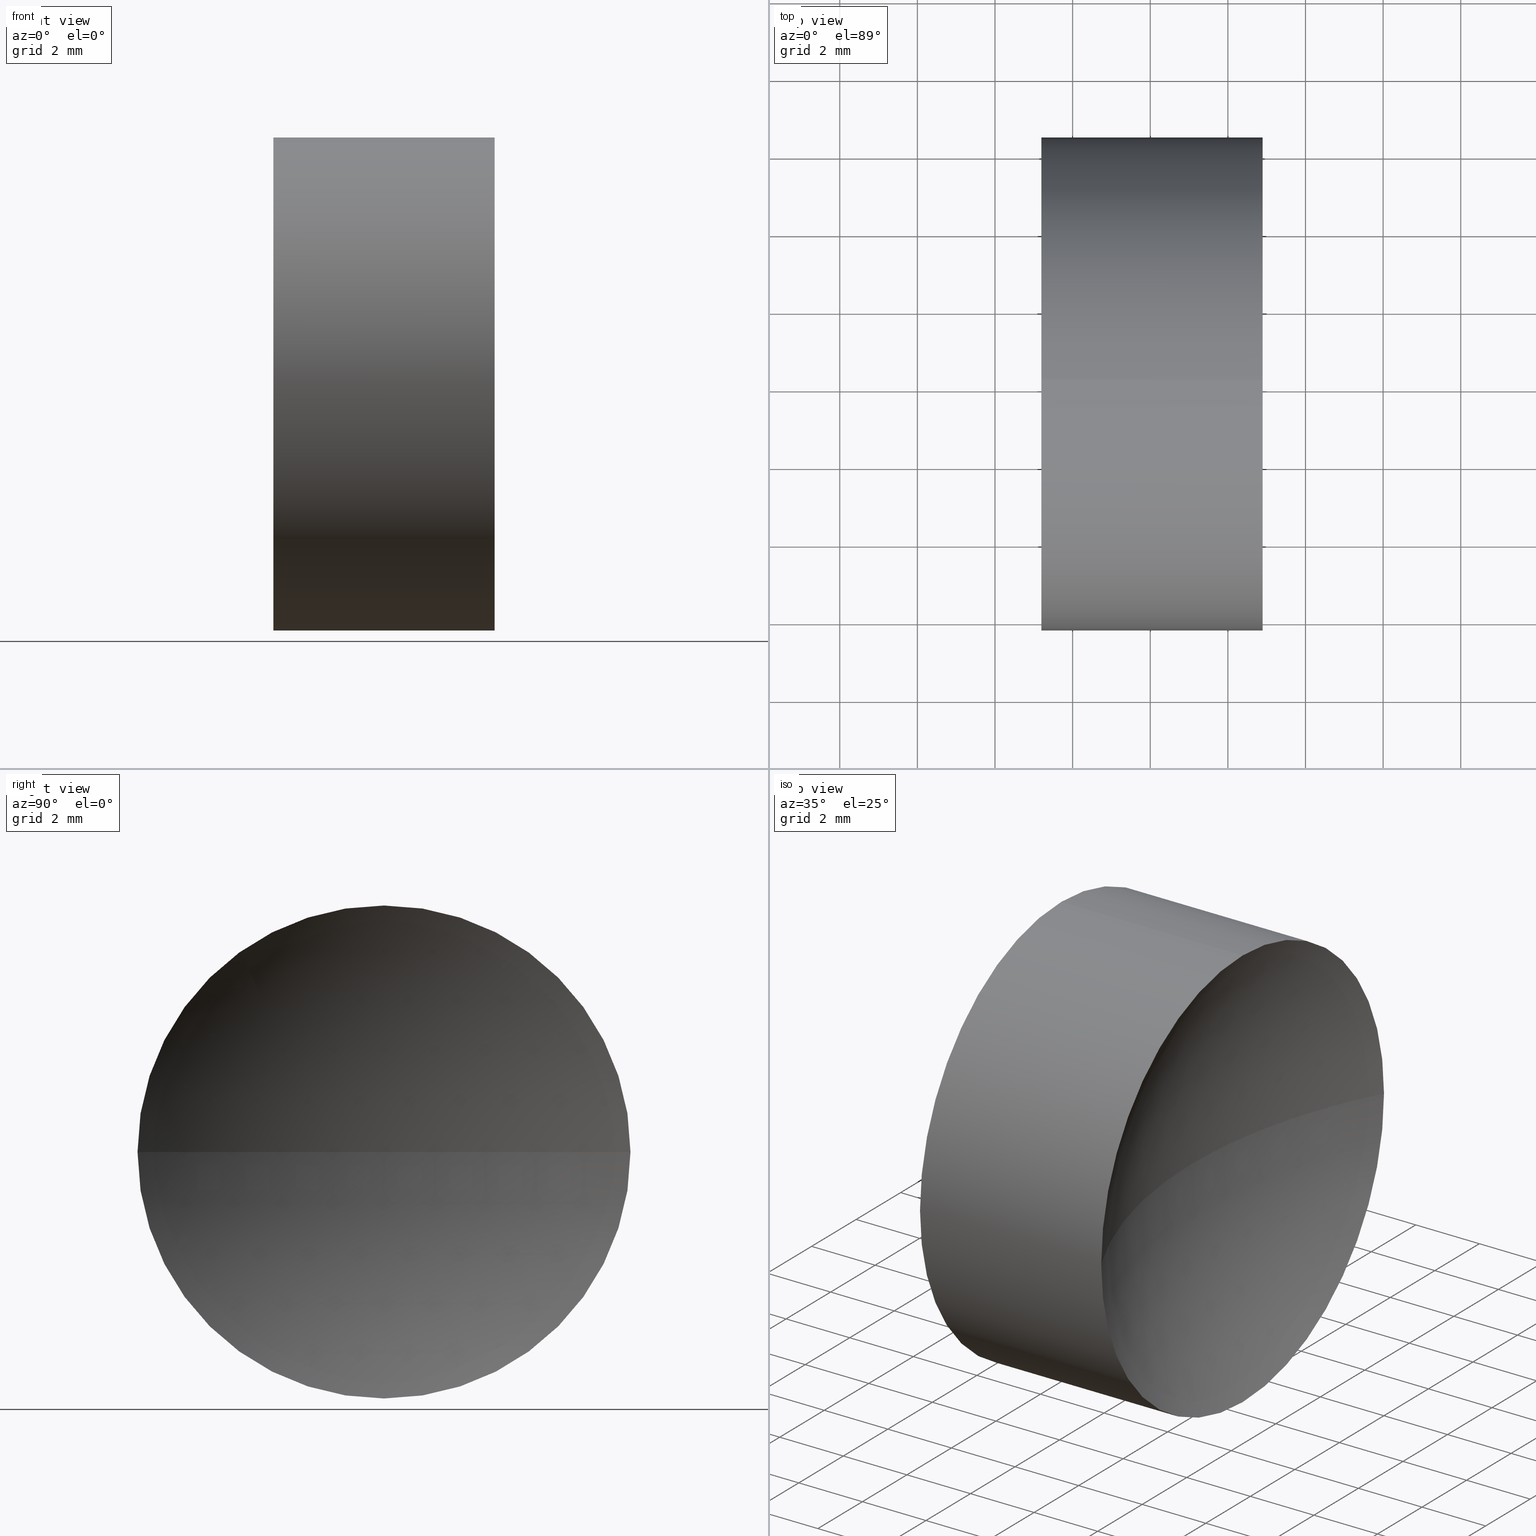
[diagram: canonical four-view strip — front | top / right | iso, engineering-drawing reading convention]
A machine part, canonical four-view strip (front | top / right | iso — engineering-drawing reading convention). The complete STEP part file that produces these views, byte-faithful:
ISO-10303-21;
HEADER;
FILE_DESCRIPTION (( 'STEP AP214' ),
    '1' );
FILE_NAME ('130070.STEP',
    '2019-07-02T09:12:59',
    ( '' ),
    ( '' ),
    'SwSTEP 2.0',
    'SolidWorks 2016',
    '' );
FILE_SCHEMA (( 'AUTOMOTIVE_DESIGN' ));
ENDSEC;

DATA;
#1 = EDGE_CURVE ( 'NONE', #21, #98, #13, .T. ) ;
#2 = ORIENTED_EDGE ( 'NONE', *, *, #128, .F. ) ;
#3 = CIRCLE ( 'NONE', #191, 6.349999999999997900 ) ;
#4 = AXIS2_PLACEMENT_3D ( 'NONE', #187, #85, #62 ) ;
#5 = ORIENTED_EDGE ( 'NONE', *, *, #14, .T. ) ;
#6 = SPHERICAL_SURFACE ( 'NONE', #164, 13.39999999999999500 ) ;
#7 =( GEOMETRIC_REPRESENTATION_CONTEXT ( 3 ) GLOBAL_UNCERTAINTY_ASSIGNED_CONTEXT ( ( #147 ) ) GLOBAL_UNIT_ASSIGNED_CONTEXT ( ( #227, #117, #132 ) ) REPRESENTATION_CONTEXT ( 'NONE', 'WORKASPACE' ) );
#8 = DIRECTION ( 'NONE',  ( -1.000000000000000000, -0.0000000000000000000, -0.0000000000000000000 ) ) ;
#9 = CARTESIAN_POINT ( 'NONE',  ( 46.79522198417998200, 26.08904114919496600, 0.0000000000000000000 ) ) ;
#10 = DIRECTION ( 'NONE',  ( 0.0000000000000000000, 1.000000000000000000, 0.0000000000000000000 ) ) ;
#11 = EDGE_CURVE ( 'NONE', #61, #86, #193, .T. ) ;
#12 = DIRECTION ( 'NONE',  ( -1.000000000000000000, -0.0000000000000000000, -0.0000000000000000000 ) ) ;
#13 = CIRCLE ( 'NONE', #140, 6.350000000000012100 ) ;
#14 = EDGE_CURVE ( 'NONE', #43, #156, #141, .T. ) ;
#15 =( NAMED_UNIT ( * ) PLANE_ANGLE_UNIT ( ) SI_UNIT ( $, .RADIAN. ) );
#16 = DIRECTION ( 'NONE',  ( 1.000000000000000000, 0.0000000000000000000, 0.0000000000000000000 ) ) ;
#17 = ORIENTED_EDGE ( 'NONE', *, *, #145, .T. ) ;
#18 = CIRCLE ( 'NONE', #52, 6.350000000000012100 ) ;
#19 = ADVANCED_FACE ( 'NONE', ( #93 ), #99, .F. ) ;
#20 = ORIENTED_EDGE ( 'NONE', *, *, #53, .T. ) ;
#21 = VERTEX_POINT ( 'NONE', #57 ) ;
#22 = COLOUR_RGB ( '',1.000000000000000000, 1.000000000000000000, 1.000000000000000000 ) ;
#23 = PRODUCT_DEFINITION_CONTEXT ( 'detailed design', #194, 'design' ) ;
#24 = DIRECTION ( 'NONE',  ( 0.0000000000000000000, 0.0000000000000000000, 1.000000000000000000 ) ) ;
#25 = VECTOR ( 'NONE', #151, 1000.000000000000000 ) ;
#26 = DIRECTION ( 'NONE',  ( 0.0000000000000000000, 0.0000000000000000000, 1.000000000000000000 ) ) ;
#27 = CARTESIAN_POINT ( 'NONE',  ( 45.19511605150109500, 32.43904114919495600, 0.0000000000000000000 ) ) ;
#28 = CARTESIAN_POINT ( 'NONE',  ( 45.19511605150109500, 26.08904114919495900, 0.0000000000000000000 ) ) ;
#29 = EDGE_LOOP ( 'NONE', ( #186, #188, #224, #17 ) ) ;
#30 = UNCERTAINTY_MEASURE_WITH_UNIT (LENGTH_MEASURE( 1.000000000000000100E-005 ), #82, 'distance_accuracy_value', 'NONE');
#31 = CARTESIAN_POINT ( 'NONE',  ( 45.19511605150109500, 26.08904114919495900, 0.0000000000000000000 ) ) ;
#32 = CARTESIAN_POINT ( 'NONE',  ( 62.69522198417998000, 26.08904114919495900, 0.0000000000000000000 ) ) ;
#33 = DIRECTION ( 'NONE',  ( -1.000000000000000000, 0.0000000000000000000, 0.0000000000000000000 ) ) ;
#34 = CYLINDRICAL_SURFACE ( 'NONE', #153, 6.349999999999997900 ) ;
#35 = APPLICATION_PROTOCOL_DEFINITION ( 'draft international standard', 'automotive_design', 1998, #194 ) ;
#36 = PRESENTATION_STYLE_ASSIGNMENT (( #42 ) ) ;
#37 = PRESENTATION_LAYER_ASSIGNMENT (  '', '', ( #228 ) ) ;
#38 = ORIENTED_EDGE ( 'NONE', *, *, #122, .T. ) ;
#39 = CARTESIAN_POINT ( 'NONE',  ( 45.19511605150109500, 19.73904114919496800, -7.776507174585690200E-016 ) ) ;
#40 = CARTESIAN_POINT ( 'NONE',  ( 50.89532791685886800, 26.08904114919495900, 6.350000000000012100 ) ) ;
#41 = AXIS2_PLACEMENT_3D ( 'NONE', #75, #114, #220 ) ;
#42 = SURFACE_STYLE_USAGE ( .BOTH. , #64 ) ;
#43 = VERTEX_POINT ( 'NONE', #40 ) ;
#44 = DIRECTION ( 'NONE',  ( -1.000000000000000000, -0.0000000000000000000, -0.0000000000000000000 ) ) ;
#45 = DIRECTION ( 'NONE',  ( 0.0000000000000000000, 0.0000000000000000000, 1.000000000000000000 ) ) ;
#46 = SPHERICAL_SURFACE ( 'NONE', #173, 13.40000000000000700 ) ;
#47 = MECHANICAL_DESIGN_GEOMETRIC_PRESENTATION_REPRESENTATION (  '', ( #228 ), #209 ) ;
#48 = ADVANCED_FACE ( 'NONE', ( #51 ), #34, .T. ) ;
#49 = ADVANCED_FACE ( 'NONE', ( #215 ), #171, .F. ) ;
#50 = UNCERTAINTY_MEASURE_WITH_UNIT (LENGTH_MEASURE( 1.000000000000000100E-005 ), #118, 'distance_accuracy_value', 'NONE');
#51 = FACE_OUTER_BOUND ( 'NONE', #120, .T. ) ;
#52 = AXIS2_PLACEMENT_3D ( 'NONE', #172, #44, #229 ) ;
#53 = EDGE_CURVE ( 'NONE', #61, #21, #144, .T. ) ;
#54 = SURFACE_STYLE_FILL_AREA ( #150 ) ;
#55 = CARTESIAN_POINT ( 'NONE',  ( 62.69522198417998000, 26.08904114919495900, 0.0000000000000000000 ) ) ;
#56 = ORIENTED_EDGE ( 'NONE', *, *, #214, .T. ) ;
#57 = CARTESIAN_POINT ( 'NONE',  ( 50.89532791685886800, 26.08904114919495900, -6.350000000000012100 ) ) ;
#58 = CARTESIAN_POINT ( 'NONE',  ( 62.69522198417998000, 26.08904114919495900, 0.0000000000000000000 ) ) ;
#59 = CARTESIAN_POINT ( 'NONE',  ( 50.89532791685886800, 19.73904114919494600, 0.0000000000000000000 ) ) ;
#60 = EDGE_CURVE ( 'NONE', #133, #156, #175, .T. ) ;
#61 = VERTEX_POINT ( 'NONE', #180 ) ;
#62 = DIRECTION ( 'NONE',  ( 0.0000000000000000000, 1.000000000000000000, 1.224646799147353000E-016 ) ) ;
#63 = FILL_AREA_STYLE ('',( #205 ) ) ;
#64 = SURFACE_SIDE_STYLE ('',( #54 ) ) ;
#65 = CIRCLE ( 'NONE', #198, 6.350000000000012100 ) ;
#66 = DIRECTION ( 'NONE',  ( 0.0000000000000000000, 0.0000000000000000000, 1.000000000000000000 ) ) ;
#67 = APPLICATION_PROTOCOL_DEFINITION ( 'draft international standard', 'automotive_design', 1998, #169 ) ;
#68 = ADVANCED_FACE ( 'NONE', ( #110 ), #46, .F. ) ;
#69 = PRESENTATION_STYLE_ASSIGNMENT (( #226 ) ) ;
#70 = ORIENTED_EDGE ( 'NONE', *, *, #14, .F. ) ;
#71 = LINE ( 'NONE', #168, #25 ) ;
#72 = AXIS2_PLACEMENT_3D ( 'NONE', #28, #204, #96 ) ;
#73 = CIRCLE ( 'NONE', #92, 13.40000000000000900 ) ;
#74 = DIRECTION ( 'NONE',  ( 0.0000000000000000000, 0.0000000000000000000, 1.000000000000000000 ) ) ;
#75 = CARTESIAN_POINT ( 'NONE',  ( 42.44986111413682300, 26.08904114919495900, 0.0000000000000000000 ) ) ;
#76 = PRODUCT_DEFINITION_SHAPE ( 'NONE', 'NONE',  #116 ) ;
#77 = DIRECTION ( 'NONE',  ( 0.0000000000000000000, 0.0000000000000000000, 1.000000000000000000 ) ) ;
#78 = ORIENTED_EDGE ( 'NONE', *, *, #203, .T. ) ;
#79 = DIRECTION ( 'NONE',  ( 0.0000000000000000000, 0.0000000000000000000, -1.000000000000000000 ) ) ;
#80 = CARTESIAN_POINT ( 'NONE',  ( 50.89532791685886800, 26.08904114919495900, 0.0000000000000000000 ) ) ;
#81 = AXIS2_PLACEMENT_3D ( 'NONE', #55, #24, #216 ) ;
#82 =( LENGTH_UNIT ( ) NAMED_UNIT ( * ) SI_UNIT ( .MILLI., .METRE. ) );
#83 = DIRECTION ( 'NONE',  ( 0.0000000000000000000, 0.0000000000000000000, -1.000000000000000000 ) ) ;
#84 = ORIENTED_EDGE ( 'NONE', *, *, #124, .F. ) ;
#85 = DIRECTION ( 'NONE',  ( 0.0000000000000000000, 1.224646799147353200E-016, -1.000000000000000000 ) ) ;
#86 = VERTEX_POINT ( 'NONE', #129 ) ;
#87 = ADVANCED_FACE ( 'NONE', ( #105 ), #163, .T. ) ;
#88 = VERTEX_POINT ( 'NONE', #27 ) ;
#89 = AXIS2_PLACEMENT_3D ( 'NONE', #166, #184, #113 ) ;
#90 = CARTESIAN_POINT ( 'NONE',  ( 50.89532791685886800, 26.08904114919495900, 0.0000000000000000000 ) ) ;
#91 = VERTEX_POINT ( 'NONE', #218 ) ;
#92 = AXIS2_PLACEMENT_3D ( 'NONE', #32, #83, #33 ) ;
#93 = FACE_OUTER_BOUND ( 'NONE', #29, .T. ) ;
#94 = ORIENTED_EDGE ( 'NONE', *, *, #106, .T. ) ;
#95 = CARTESIAN_POINT ( 'NONE',  ( 50.89532791685886800, 26.08904114919495900, 0.0000000000000000000 ) ) ;
#96 = DIRECTION ( 'NONE',  ( 0.0000000000000000000, 0.0000000000000000000, 1.000000000000000000 ) ) ;
#97 = CARTESIAN_POINT ( 'NONE',  ( 33.39522198417998300, 26.08904114919496600, 0.0000000000000000000 ) ) ;
#98 = VERTEX_POINT ( 'NONE', #59 ) ;
#99 = SPHERICAL_SURFACE ( 'NONE', #81, 13.40000000000000700 ) ;
#100 = FILL_AREA_STYLE_COLOUR ( '', #22 ) ;
#101 = PRODUCT_DEFINITION_FORMATION_WITH_SPECIFIED_SOURCE ( '�κ�', '', #137, .NOT_KNOWN. ) ;
#102 = DIRECTION ( 'NONE',  ( 0.0000000000000000000, 0.0000000000000000000, 1.000000000000000000 ) ) ;
#103 = ORIENTED_EDGE ( 'NONE', *, *, #145, .F. ) ;
#104 = VERTEX_POINT ( 'NONE', #9 ) ;
#105 = FACE_OUTER_BOUND ( 'NONE', #125, .T. ) ;
#106 = EDGE_CURVE ( 'NONE', #104, #88, #111, .T. ) ;
#107 = CIRCLE ( 'NONE', #4, 13.39999999999999900 ) ;
#108 = STYLED_ITEM ( 'NONE', ( #69 ), #213 ) ;
#109 = EDGE_LOOP ( 'NONE', ( #2, #94, #174, #162 ) ) ;
#110 = FACE_OUTER_BOUND ( 'NONE', #138, .T. ) ;
#111 = CIRCLE ( 'NONE', #211, 13.39999999999999500 ) ;
#112 = DIRECTION ( 'NONE',  ( 0.0000000000000000000, 0.0000000000000000000, 1.000000000000000000 ) ) ;
#113 = DIRECTION ( 'NONE',  ( 0.0000000000000000000, 1.000000000000000000, 0.0000000000000000000 ) ) ;
#114 = DIRECTION ( 'NONE',  ( -1.000000000000000000, -0.0000000000000000000, -0.0000000000000000000 ) ) ;
#115 = ORIENTED_EDGE ( 'NONE', *, *, #106, .F. ) ;
#116 = PRODUCT_DEFINITION ( 'δ֪', '', #101, #23 ) ;
#117 =( NAMED_UNIT ( * ) PLANE_ANGLE_UNIT ( ) SI_UNIT ( $, .RADIAN. ) );
#118 =( LENGTH_UNIT ( ) NAMED_UNIT ( * ) SI_UNIT ( .MILLI., .METRE. ) );
#119 = CARTESIAN_POINT ( 'NONE',  ( 45.19511605150109500, 26.08904114919495900, 0.0000000000000000000 ) ) ;
#120 = EDGE_LOOP ( 'NONE', ( #232, #159, #56, #5, #177, #221 ) ) ;
#121 = ADVANCED_FACE ( 'NONE', ( #136 ), #6, .F. ) ;
#122 = EDGE_CURVE ( 'NONE', #43, #61, #65, .T. ) ;
#123 = CIRCLE ( 'NONE', #176, 6.349999999999997900 ) ;
#124 = EDGE_CURVE ( 'NONE', #156, #88, #123, .T. ) ;
#125 = EDGE_LOOP ( 'NONE', ( #20, #78, #130, #84, #70, #38 ) ) ;
#126 = DIRECTION ( 'NONE',  ( 0.0000000000000000000, -1.224646799147353200E-016, 1.000000000000000000 ) ) ;
#127 =( GEOMETRIC_REPRESENTATION_CONTEXT ( 3 ) GLOBAL_UNCERTAINTY_ASSIGNED_CONTEXT ( ( #50 ) ) GLOBAL_UNIT_ASSIGNED_CONTEXT ( ( #118, #15, #206 ) ) REPRESENTATION_CONTEXT ( 'NONE', 'WORKASPACE' ) );
#128 = EDGE_CURVE ( 'NONE', #104, #133, #107, .T. ) ;
#129 = CARTESIAN_POINT ( 'NONE',  ( 49.29522198417997500, 26.08904114919495900, 0.0000000000000000000 ) ) ;
#130 = ORIENTED_EDGE ( 'NONE', *, *, #217, .F. ) ;
#131 = DIRECTION ( 'NONE',  ( 1.000000000000000000, 0.0000000000000000000, 0.0000000000000000000 ) ) ;
#132 =( NAMED_UNIT ( * ) SI_UNIT ( $, .STERADIAN. ) SOLID_ANGLE_UNIT ( ) );
#133 = VERTEX_POINT ( 'NONE', #39 ) ;
#134 = PRODUCT_CONTEXT ( 'NONE', #169, 'mechanical' ) ;
#135 = CARTESIAN_POINT ( 'NONE',  ( 0.0000000000000000000, 0.0000000000000000000, 0.0000000000000000000 ) ) ;
#136 = FACE_OUTER_BOUND ( 'NONE', #202, .T. ) ;
#137 = PRODUCT ( '130070', '130070', '', ( #134 ) ) ;
#138 = EDGE_LOOP ( 'NONE', ( #158, #196, #103, #142 ) ) ;
#139 = DIRECTION ( 'NONE',  ( -1.000000000000000000, -0.0000000000000000000, -0.0000000000000000000 ) ) ;
#140 = AXIS2_PLACEMENT_3D ( 'NONE', #90, #139, #74 ) ;
#141 = LINE ( 'NONE', #199, #178 ) ;
#142 = ORIENTED_EDGE ( 'NONE', *, *, #1, .F. ) ;
#143 = CARTESIAN_POINT ( 'NONE',  ( 62.69522198417998000, 26.08904114919495900, 0.0000000000000000000 ) ) ;
#144 = CIRCLE ( 'NONE', #160, 6.350000000000012100 ) ;
#145 = EDGE_CURVE ( 'NONE', #98, #86, #73, .T. ) ;
#146 = CARTESIAN_POINT ( 'NONE',  ( 33.39522198417998300, 26.08904114919496600, 0.0000000000000000000 ) ) ;
#147 = UNCERTAINTY_MEASURE_WITH_UNIT (LENGTH_MEASURE( 1.000000000000000100E-005 ), #227, 'distance_accuracy_value', 'NONE');
#148 = AXIS2_PLACEMENT_3D ( 'NONE', #119, #190, #45 ) ;
#149 = SURFACE_STYLE_FILL_AREA ( #63 ) ;
#150 = FILL_AREA_STYLE ('',( #100 ) ) ;
#151 = DIRECTION ( 'NONE',  ( -1.000000000000000000, -0.0000000000000000000, -0.0000000000000000000 ) ) ;
#152 = CARTESIAN_POINT ( 'NONE',  ( 45.19511605150109500, 26.08904114919495900, 6.349999999999997900 ) ) ;
#153 = AXIS2_PLACEMENT_3D ( 'NONE', #165, #167, #77 ) ;
#154 =( NAMED_UNIT ( * ) SI_UNIT ( $, .STERADIAN. ) SOLID_ANGLE_UNIT ( ) );
#155 = DIRECTION ( 'NONE',  ( -1.000000000000000000, -0.0000000000000000000, -0.0000000000000000000 ) ) ;
#156 = VERTEX_POINT ( 'NONE', #152 ) ;
#157 = EDGE_CURVE ( 'NONE', #91, #133, #3, .T. ) ;
#158 = ORIENTED_EDGE ( 'NONE', *, *, #53, .F. ) ;
#159 = ORIENTED_EDGE ( 'NONE', *, *, #1, .T. ) ;
#160 = AXIS2_PLACEMENT_3D ( 'NONE', #95, #8, #181 ) ;
#161 = AXIS2_PLACEMENT_3D ( 'NONE', #135, #66, #16 ) ;
#162 = ORIENTED_EDGE ( 'NONE', *, *, #157, .T. ) ;
#163 = CYLINDRICAL_SURFACE ( 'NONE', #41, 6.349999999999997900 ) ;
#164 = AXIS2_PLACEMENT_3D ( 'NONE', #146, #79, #10 ) ;
#165 = CARTESIAN_POINT ( 'NONE',  ( 42.44986111413682300, 26.08904114919495900, 0.0000000000000000000 ) ) ;
#166 = CARTESIAN_POINT ( 'NONE',  ( 33.39522198417998300, 26.08904114919496600, 0.0000000000000000000 ) ) ;
#167 = DIRECTION ( 'NONE',  ( -1.000000000000000000, -0.0000000000000000000, -0.0000000000000000000 ) ) ;
#168 = CARTESIAN_POINT ( 'NONE',  ( 42.44986111413682300, 26.08904114919495900, -6.349999999999997900 ) ) ;
#169 = APPLICATION_CONTEXT ( 'automotive_design' ) ;
#170 = CLOSED_SHELL ( 'NONE', ( #87, #68, #121, #49, #19, #48 ) ) ;
#171 = SPHERICAL_SURFACE ( 'NONE', #89, 13.39999999999999500 ) ;
#172 = CARTESIAN_POINT ( 'NONE',  ( 50.89532791685886800, 26.08904114919495900, 0.0000000000000000000 ) ) ;
#173 = AXIS2_PLACEMENT_3D ( 'NONE', #58, #112, #222 ) ;
#174 = ORIENTED_EDGE ( 'NONE', *, *, #217, .T. ) ;
#175 = CIRCLE ( 'NONE', #72, 6.349999999999997900 ) ;
#176 = AXIS2_PLACEMENT_3D ( 'NONE', #223, #207, #230 ) ;
#177 = ORIENTED_EDGE ( 'NONE', *, *, #60, .F. ) ;
#178 = VECTOR ( 'NONE', #179, 1000.000000000000000 ) ;
#179 = DIRECTION ( 'NONE',  ( -1.000000000000000000, -0.0000000000000000000, -0.0000000000000000000 ) ) ;
#180 = CARTESIAN_POINT ( 'NONE',  ( 50.89532791685886800, 32.43904114919497800, 7.776507174585709900E-016 ) ) ;
#181 = DIRECTION ( 'NONE',  ( 0.0000000000000000000, 0.0000000000000000000, 1.000000000000000000 ) ) ;
#182 = AXIS2_PLACEMENT_3D ( 'NONE', #143, #126, #201 ) ;
#183 = DIRECTION ( 'NONE',  ( 0.0000000000000000000, 0.0000000000000000000, 1.000000000000000000 ) ) ;
#184 = DIRECTION ( 'NONE',  ( 0.0000000000000000000, 0.0000000000000000000, -1.000000000000000000 ) ) ;
#185 = SHAPE_DEFINITION_REPRESENTATION ( #76, #213 ) ;
#186 = ORIENTED_EDGE ( 'NONE', *, *, #11, .F. ) ;
#187 = CARTESIAN_POINT ( 'NONE',  ( 33.39522198417998300, 26.08904114919496600, 0.0000000000000000000 ) ) ;
#188 = ORIENTED_EDGE ( 'NONE', *, *, #122, .F. ) ;
#189 =( NAMED_UNIT ( * ) PLANE_ANGLE_UNIT ( ) SI_UNIT ( $, .RADIAN. ) );
#190 = DIRECTION ( 'NONE',  ( -1.000000000000000000, -0.0000000000000000000, -0.0000000000000000000 ) ) ;
#191 = AXIS2_PLACEMENT_3D ( 'NONE', #31, #155, #102 ) ;
#192 = SURFACE_SIDE_STYLE ('',( #149 ) ) ;
#193 = CIRCLE ( 'NONE', #182, 13.40000000000000700 ) ;
#194 = APPLICATION_CONTEXT ( 'automotive_design' ) ;
#195 = MANIFOLD_SOLID_BREP ( '��ת1', #170 ) ;
#196 = ORIENTED_EDGE ( 'NONE', *, *, #11, .T. ) ;
#197 = CIRCLE ( 'NONE', #148, 6.349999999999997900 ) ;
#198 = AXIS2_PLACEMENT_3D ( 'NONE', #80, #12, #26 ) ;
#199 = CARTESIAN_POINT ( 'NONE',  ( 42.44986111413682300, 26.08904114919495900, 6.349999999999997900 ) ) ;
#200 = ORIENTED_EDGE ( 'NONE', *, *, #128, .T. ) ;
#201 = DIRECTION ( 'NONE',  ( 0.0000000000000000000, -1.000000000000000000, -1.224646799147353200E-016 ) ) ;
#202 = EDGE_LOOP ( 'NONE', ( #115, #200, #210, #231 ) ) ;
#203 = EDGE_CURVE ( 'NONE', #21, #91, #71, .T. ) ;
#204 = DIRECTION ( 'NONE',  ( -1.000000000000000000, -0.0000000000000000000, -0.0000000000000000000 ) ) ;
#205 = FILL_AREA_STYLE_COLOUR ( '', #208 ) ;
#206 =( NAMED_UNIT ( * ) SI_UNIT ( $, .STERADIAN. ) SOLID_ANGLE_UNIT ( ) );
#207 = DIRECTION ( 'NONE',  ( -1.000000000000000000, -0.0000000000000000000, -0.0000000000000000000 ) ) ;
#208 = COLOUR_RGB ( '',1.000000000000000000, 1.000000000000000000, 1.000000000000000000 ) ;
#209 =( GEOMETRIC_REPRESENTATION_CONTEXT ( 3 ) GLOBAL_UNCERTAINTY_ASSIGNED_CONTEXT ( ( #30 ) ) GLOBAL_UNIT_ASSIGNED_CONTEXT ( ( #82, #189, #154 ) ) REPRESENTATION_CONTEXT ( 'NONE', 'WORKASPACE' ) );
#210 = ORIENTED_EDGE ( 'NONE', *, *, #60, .T. ) ;
#211 = AXIS2_PLACEMENT_3D ( 'NONE', #97, #183, #131 ) ;
#212 = MECHANICAL_DESIGN_GEOMETRIC_PRESENTATION_REPRESENTATION (  '', ( #108 ), #127 ) ;
#213 = ADVANCED_BREP_SHAPE_REPRESENTATION ( '130070', ( #195, #161 ), #7 ) ;
#214 = EDGE_CURVE ( 'NONE', #98, #43, #18, .T. ) ;
#215 = FACE_OUTER_BOUND ( 'NONE', #109, .T. ) ;
#216 = DIRECTION ( 'NONE',  ( 0.0000000000000000000, -1.000000000000000000, 0.0000000000000000000 ) ) ;
#217 = EDGE_CURVE ( 'NONE', #88, #91, #197, .T. ) ;
#218 = CARTESIAN_POINT ( 'NONE',  ( 45.19511605150109500, 26.08904114919495900, -6.349999999999997900 ) ) ;
#219 = PRESENTATION_LAYER_ASSIGNMENT (  '', '', ( #108 ) ) ;
#220 = DIRECTION ( 'NONE',  ( 0.0000000000000000000, 0.0000000000000000000, 1.000000000000000000 ) ) ;
#221 = ORIENTED_EDGE ( 'NONE', *, *, #157, .F. ) ;
#222 = DIRECTION ( 'NONE',  ( 0.0000000000000000000, -1.000000000000000000, 0.0000000000000000000 ) ) ;
#223 = CARTESIAN_POINT ( 'NONE',  ( 45.19511605150109500, 26.08904114919495900, 0.0000000000000000000 ) ) ;
#224 = ORIENTED_EDGE ( 'NONE', *, *, #214, .F. ) ;
#225 = PRODUCT_RELATED_PRODUCT_CATEGORY ( 'part', '', ( #137 ) ) ;
#226 = SURFACE_STYLE_USAGE ( .BOTH. , #192 ) ;
#227 =( LENGTH_UNIT ( ) NAMED_UNIT ( * ) SI_UNIT ( .MILLI., .METRE. ) );
#228 = STYLED_ITEM ( 'NONE', ( #36 ), #195 ) ;
#229 = DIRECTION ( 'NONE',  ( 0.0000000000000000000, 0.0000000000000000000, 1.000000000000000000 ) ) ;
#230 = DIRECTION ( 'NONE',  ( 0.0000000000000000000, 0.0000000000000000000, 1.000000000000000000 ) ) ;
#231 = ORIENTED_EDGE ( 'NONE', *, *, #124, .T. ) ;
#232 = ORIENTED_EDGE ( 'NONE', *, *, #203, .F. ) ;
ENDSEC;
END-ISO-10303-21;
